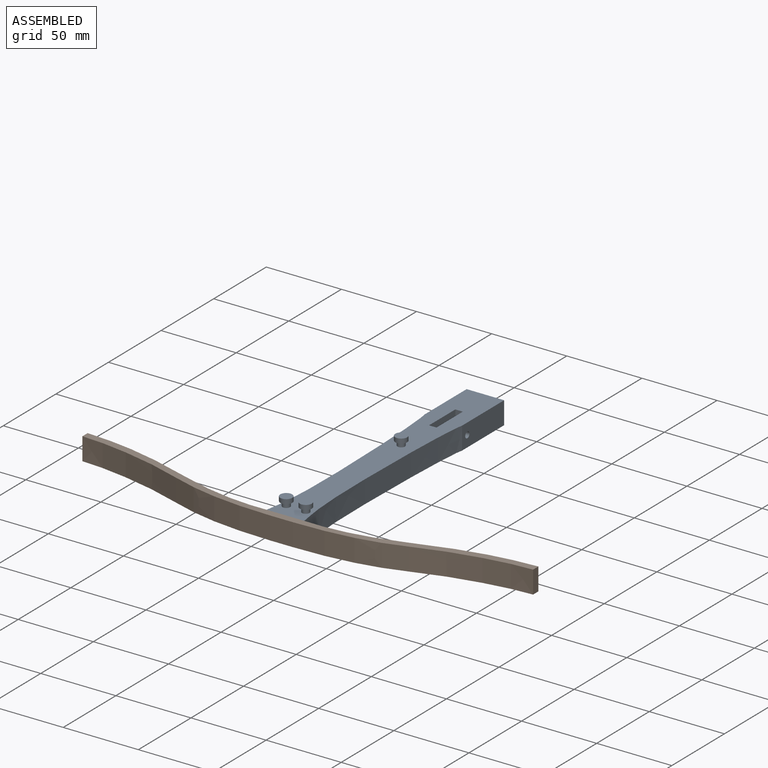
[diagram: assembled view]
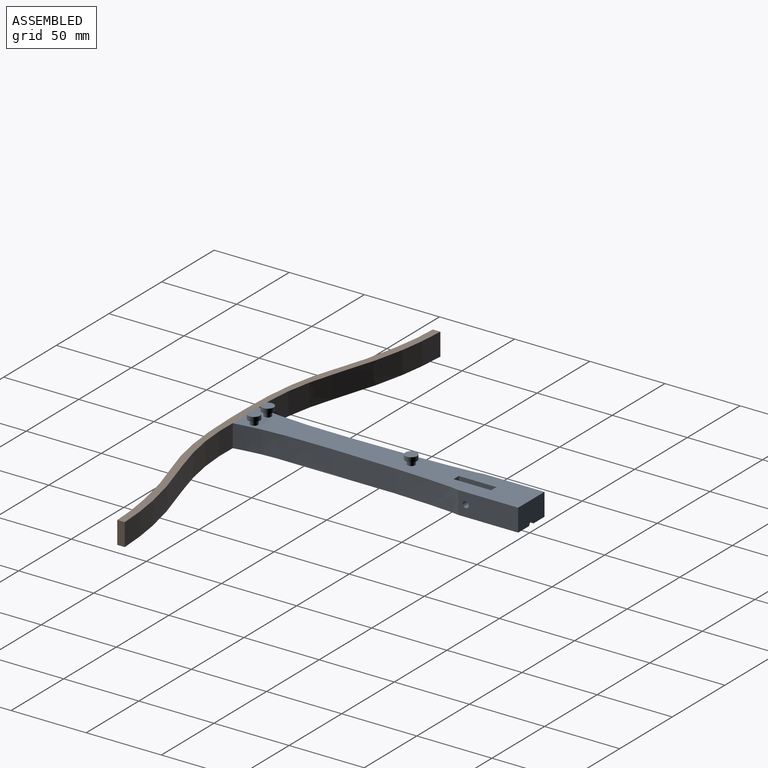
[diagram: assembled view, second angle]
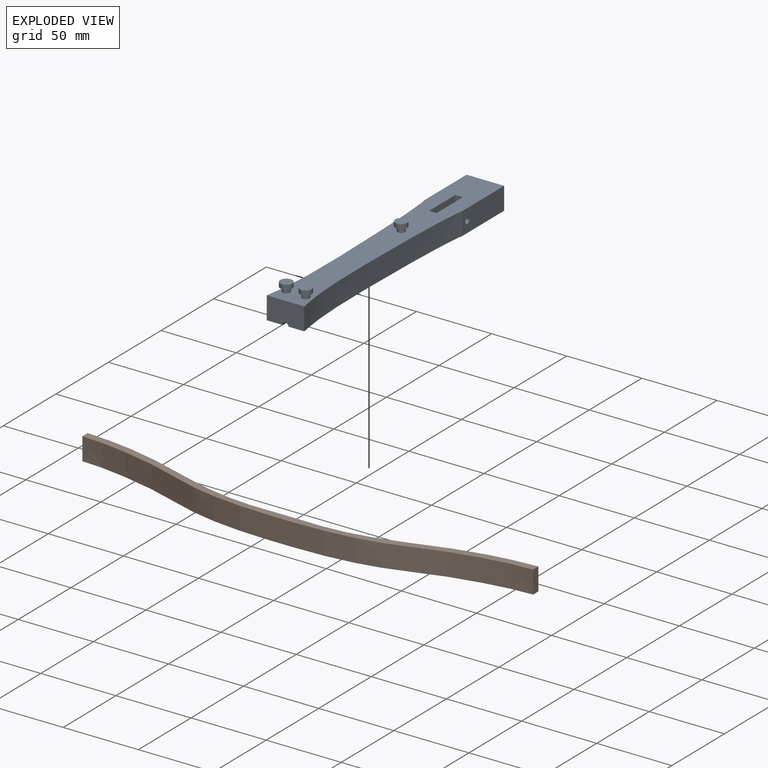
[diagram: exploded view]
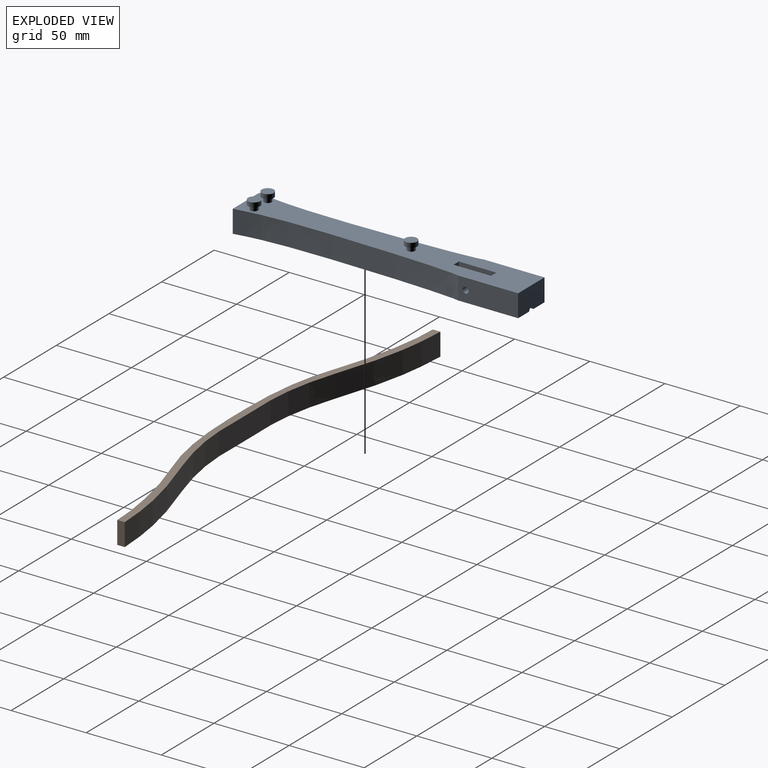
[diagram: exploded view, second angle]
ASSEMBLY  parts=2 mates=2
PART A: 29 faces, bbox 25x190x21 mm
  f0: plane 190x10.5mm, normal (0,0,-1), area 1572.7mm2, adj f3,f5,f6,f9,f10,f23,f25,f26
  f1: plane 190x25mm, normal (0,0,1), area 3746.8mm2, adj f5,f6,f7,f8,f9,f10,f11,f12
  f2: plane 190x10.5mm, normal (0,0,-1), area 1572.8mm2, adj f3,f5,f6,f7,f8,f23,f25,f26
  f3: cylinder r=2mm len=25mm, axis (0,1,0), area 157.1mm2, adj f0,f2,f5,f25
  f4: cylinder r=2mm len=10mm, axis (1,0,0), area 125.7mm2, adj f8,f28
  f5: plane 25x15mm, normal (0,1,0), area 368.7mm2, adj f0,f1,f2,f3,f8,f9
  f6: plane 25x15mm, normal (0,-1,0), area 368.7mm2, adj f0,f1,f2,f7,f10,f23
  f7: extruded ~150x15mm, area 2255.5mm2, adj f1,f2,f6,f8
  f8: plane 40x15mm, normal (1,0,0), area 587.4mm2, adj f1,f2,f4,f5,f7
  f9: plane 40x15mm, normal (-1,0,0), area 587.4mm2, adj f0,f1,f5,f10,f24
  f10: extruded ~150x15mm, area 2255.5mm2, adj f0,f1,f6,f9
  f11: cylinder r=2.5mm len=5mm, axis (0,0,-1), area 47.1mm2, adj f1,f22
  f12: cylinder r=2.5mm len=5mm, axis (0,0,-1), area 47.1mm2, adj f1,f19
  f13: cylinder r=2.5mm len=5mm, axis (0,0,-1), area 47.1mm2, adj f1,f16
  f14: cylinder r=4mm len=8mm, axis (0,0,-1), area 75.4mm2, adj f15,f16
  f15: plane 8x8mm, normal (0,0,1), area 50.3mm2, adj f14
  f16: plane 8x8mm, normal (0,0,-1), area 30.6mm2, adj f13,f14
  f17: cylinder r=4mm len=8mm, axis (0,0,-1), area 75.4mm2, adj f18,f19
  f18: plane 8x8mm, normal (0,0,1), area 50.3mm2, adj f17
  f19: plane 8x8mm, normal (0,0,-1), area 30.6mm2, adj f12,f17
  f20: cylinder r=4mm len=8mm, axis (0,0,-1), area 75.4mm2, adj f21,f22
  f21: plane 8x8mm, normal (0,0,1), area 50.3mm2, adj f20
  f22: plane 8x8mm, normal (0,0,-1), area 30.6mm2, adj f11,f20
  f23: cylinder r=2mm len=140mm, axis (0,1,0), area 879.6mm2, adj f0,f2,f6,f26
  f24: cylinder r=2mm len=10mm, axis (1,0,0), area 125.7mm2, adj f9,f27
  f25: plane 15x5mm, normal (0,-1,0), area 68.7mm2, adj f0,f1,f2,f3,f27,f28
  f26: plane 15x5mm, normal (0,1,0), area 68.7mm2, adj f0,f1,f2,f23,f27,f28
  f27: plane 25x15mm, normal (1,0,0), area 362.4mm2, adj f0,f1,f24,f25,f26
  f28: plane 25x15mm, normal (-1,0,0), area 362.4mm2, adj f1,f2,f4,f25,f26
PART B: 10 faces, bbox 300x30x15 mm
  f0: plane 15x15mm, normal (0,-1,0), area 225mm2, adj f1,f7,f8,f9
  f1: extruded ~142.5x25.22mm, area 2182mm2, adj f0,f2,f8,f9
  f2: plane 15x5mm, normal (1,0,0), area 75mm2, adj f1,f3,f8,f9
  f3: extruded ~142.5x25mm, area 2180.3mm2, adj f2,f4,f8,f9
  f4: plane 15x15mm, normal (0,1,0), area 225mm2, adj f3,f5,f8,f9
  f5: extruded ~142.5x25mm, area 2180.3mm2, adj f4,f6,f8,f9
  f6: plane 15x5mm, normal (-1,0,0), area 75mm2, adj f5,f7,f8,f9
  f7: extruded ~142.5x25.22mm, area 2182mm2, adj f0,f6,f8,f9
  f8: plane 300x30.03mm, normal (0,0,1), area 1465mm2, adj f0,f1,f2,f3,f4,f5,f6,f7
  f9: plane 300x30.03mm, normal (0,0,-1), area 1465mm2, adj f0,f1,f2,f3,f4,f5,f6,f7
PLACE A t=(7.08,-42.45,48)mm
PLACE B rot(axis=(1,0,0),180deg) t=(7.87,-98.84,63)mm
MATE planar A.f0 <-> B.f8  axis (0,0,-1) through (-5.42,-98.84,48)mm
MATE planar B.f0 <-> A.f6  axis (0,1,0) through (7.87,-98.84,55.5)mm
